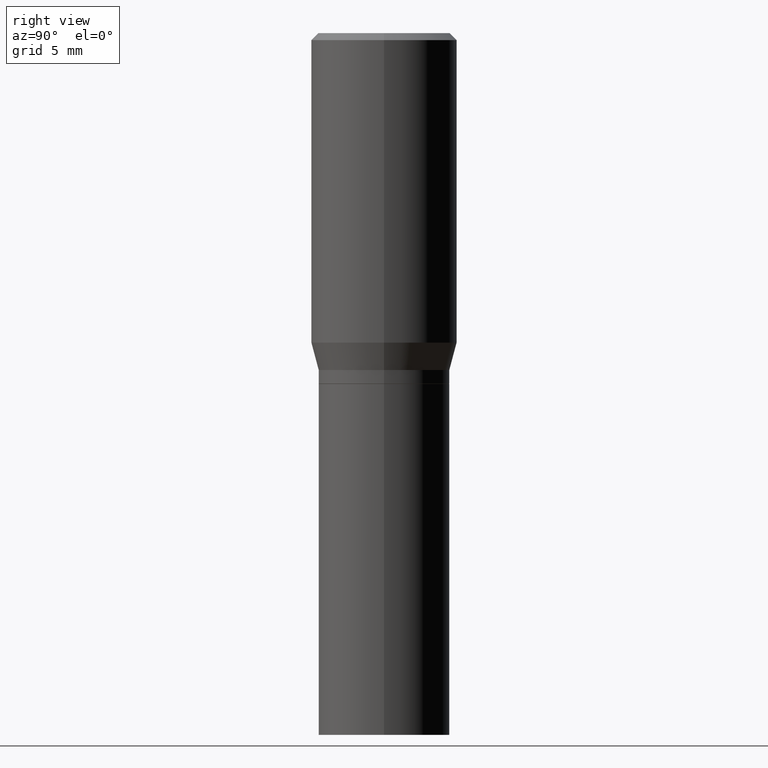
[diagram: clean part render]
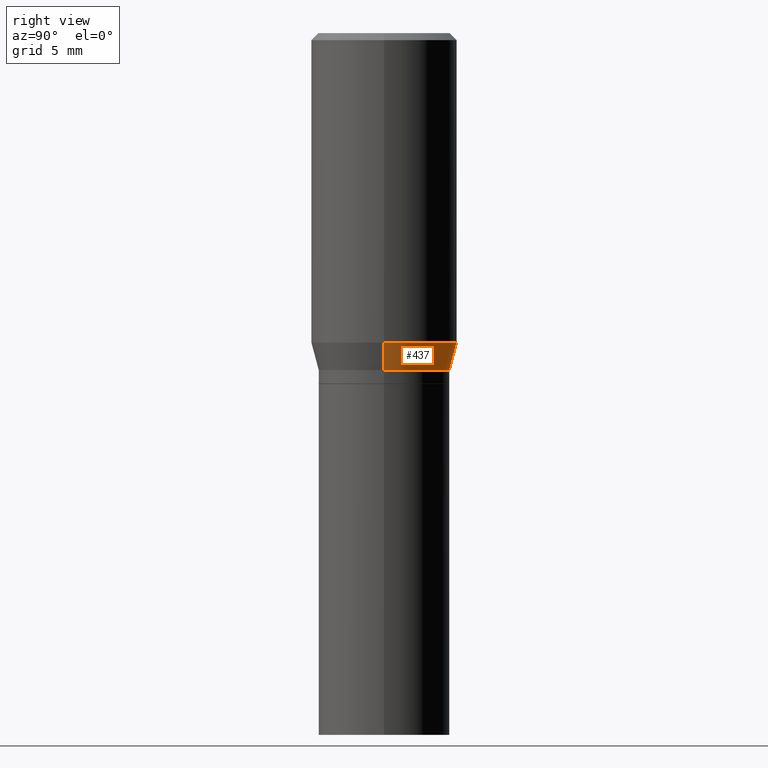
[diagram: same view with one face highlighted and labeled with its STEP entity id]
A machine part, right view. The second image highlights one B-rep face of the part: STEP entity #437.
In plain terms, the highlighted conical surface has half-angle 15 deg.
Its self-contained STEP definition (entity closure, byte-faithful):
#5 = EDGE_CURVE ( 'NONE', #388, #19, #381, .T. ) ;
#19 = VERTEX_POINT ( 'NONE', #314 ) ;
#41 = EDGE_CURVE ( 'NONE', #343, #413, #185, .T. ) ;
#43 = DIRECTION ( 'NONE',  ( 1.000000000000000000, -6.982962677686265133E-15, 0.000000000000000000 ) ) ;
#51 = DIRECTION ( 'NONE',  ( 1.000000000000000000, -6.982962677686268288E-15, 0.000000000000000000 ) ) ;
#54 = CARTESIAN_POINT ( 'NONE',  ( 1.760737540453298372E-29, -2.513866563967064930E-15, -0.7199999999999999734 ) ) ;
#112 = CARTESIAN_POINT ( 'NONE',  ( -0.1406000000000000028, -1.514843477488363852E-15, -0.7199999999999999734 ) ) ;
#120 = CARTESIAN_POINT ( 'NONE',  ( 1.760737540453298372E-29, -2.513866563967064930E-15, -0.7199999999999999734 ) ) ;
#148 = DIRECTION ( 'NONE',  ( -0.2588190451025209060, 5.211531920934547097E-15, 0.9659258262890682012 ) ) ;
#160 = FACE_OUTER_BOUND ( 'NONE', #380, .T. ) ;
#165 = CARTESIAN_POINT ( 'NONE',  ( -0.1406000000000000028, -1.357280739919498424E-15, -0.7199999999999999734 ) ) ;
#166 = CARTESIAN_POINT ( 'NONE',  ( -0.1562500000000000000, -1.199718002350633194E-15, -0.6615934048615470520 ) ) ;
#173 = EDGE_CURVE ( 'NONE', #19, #413, #371, .T. ) ;
#185 = LINE ( 'NONE', #112, #447 ) ;
#195 = AXIS2_PLACEMENT_3D ( 'NONE', #54, #336, #51 ) ;
#197 = ORIENTED_EDGE ( 'NONE', *, *, #274, .T. ) ;
#205 = DIRECTION ( 'NONE',  ( 0.2588190451025209060, 1.565188264969625123E-15, 0.9659258262890682012 ) ) ;
#207 = ORIENTED_EDGE ( 'NONE', *, *, #41, .T. ) ;
#237 = ORIENTED_EDGE ( 'NONE', *, *, #5, .F. ) ;
#274 = EDGE_CURVE ( 'NONE', #388, #343, #332, .T. ) ;
#279 = ORIENTED_EDGE ( 'NONE', *, *, #173, .F. ) ;
#290 = AXIS2_PLACEMENT_3D ( 'NONE', #120, #405, #333 ) ;
#305 = CARTESIAN_POINT ( 'NONE',  ( 0.1406000000000000028, -3.495671116449754036E-15, -0.7199999999999999734 ) ) ;
#314 = CARTESIAN_POINT ( 'NONE',  ( 0.1562500000000000000, -3.401028945364269302E-15, -0.6615934048615470520 ) ) ;
#321 = CARTESIAN_POINT ( 'NONE',  ( 1.617906033966727374E-29, -2.309941026975789734E-15, -0.6615934048615470520 ) ) ;
#326 = CONICAL_SURFACE ( 'NONE', #195, 0.1406000000000000028, 0.2617993877991495744 ) ;
#332 = CIRCLE ( 'NONE', #290, 0.1406000000000000028 ) ;
#333 = DIRECTION ( 'NONE',  ( 1.000000000000000000, -6.982962677686268288E-15, 0.000000000000000000 ) ) ;
#336 = DIRECTION ( 'NONE',  ( -2.445468806185136597E-29, 3.491481338843145583E-15, 1.000000000000000000 ) ) ;
#343 = VERTEX_POINT ( 'NONE', #165 ) ;
#362 = AXIS2_PLACEMENT_3D ( 'NONE', #321, #398, #43 ) ;
#371 = CIRCLE ( 'NONE', #362, 0.1562500000000000000 ) ;
#372 = VECTOR ( 'NONE', #205, 39.37007874015748143 ) ;
#380 = EDGE_LOOP ( 'NONE', ( #197, #207, #279, #237 ) ) ;
#381 = LINE ( 'NONE', #384, #372 ) ;
#384 = CARTESIAN_POINT ( 'NONE',  ( 0.1406000000000000028, -3.495671116449754036E-15, -0.7199999999999999734 ) ) ;
#388 = VERTEX_POINT ( 'NONE', #305 ) ;
#398 = DIRECTION ( 'NONE',  ( -2.445468806185136597E-29, 3.491481338843145583E-15, 1.000000000000000000 ) ) ;
#405 = DIRECTION ( 'NONE',  ( -2.445468806185136597E-29, 3.491481338843145583E-15, 1.000000000000000000 ) ) ;
#413 = VERTEX_POINT ( 'NONE', #166 ) ;
#437 = ADVANCED_FACE ( 'NONE', ( #160 ), #326, .T. ) ;
#447 = VECTOR ( 'NONE', #148, 39.37007874015748143 ) ;